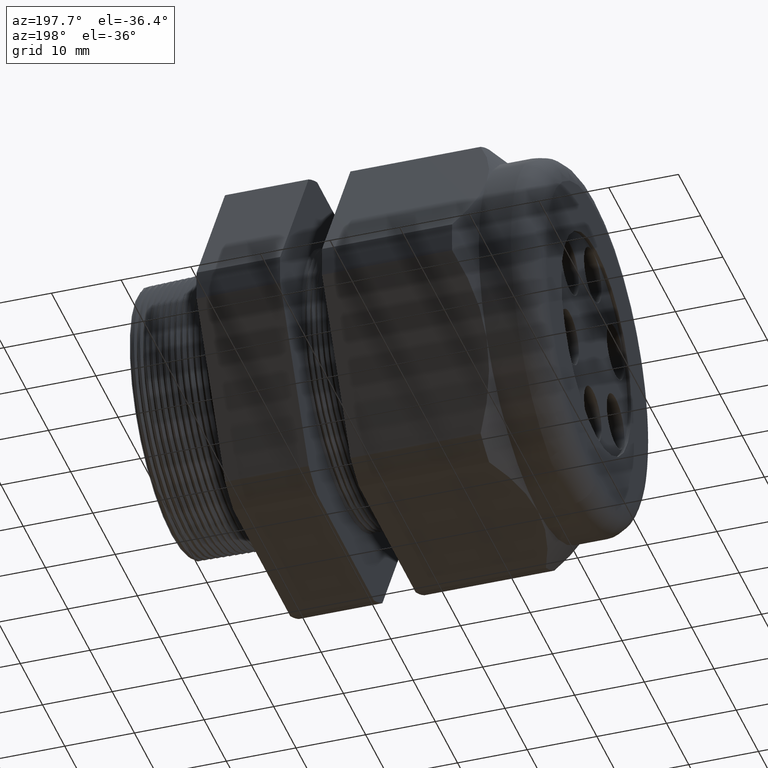
[diagram: clean part render]
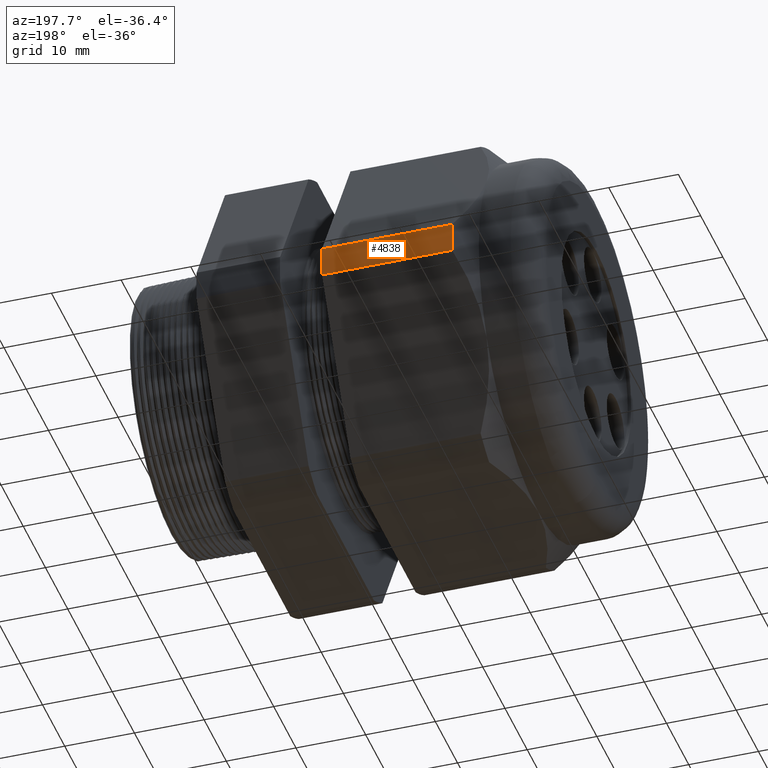
[diagram: same view with one face highlighted and labeled with its STEP entity id]
A machine part, auxiliary view. The second image highlights one B-rep face of the part: STEP entity #4838.
In plain terms, the highlighted cylindrical surface (partial cylindrical patch) has radius 29.4627 mm, axis along (-1, 0, 0).
Its self-contained STEP definition (entity closure, byte-faithful):
#2047 = DIRECTION ( 'NONE',  ( -1.000000000000000000, 0.0000000000000000000, 0.0000000000000000000 ) ) ;
#2048 = VECTOR ( 'NONE', #2047, 39.37007874015748100 ) ;
#2049 = CARTESIAN_POINT ( 'NONE',  ( 0.2000000000000000400, 1.156720106887057800, -0.08650200473511304700 ) ) ;
#2050 = LINE ( 'NONE', #2049, #2048 ) ;
#2056 = CARTESIAN_POINT ( 'NONE',  ( -1.018802799999999800, 1.156720106887057600, -0.08650200473511307500 ) ) ;
#2068 = CARTESIAN_POINT ( 'NONE',  ( -1.754342000000000300, 1.156720106887058100, -0.08650200473511308900 ) ) ;
#2820 = CYLINDRICAL_SURFACE ( 'NONE', #2878, 1.159950000000000000 ) ;
#2821 = FACE_OUTER_BOUND ( 'NONE', #4836, .T. ) ;
#2827 = DIRECTION ( 'NONE',  ( 0.0000000000000000000, 0.0000000000000000000, -1.000000000000000000 ) ) ;
#2828 = DIRECTION ( 'NONE',  ( 1.000000000000000000, 0.0000000000000000000, 0.0000000000000000000 ) ) ;
#2829 = CARTESIAN_POINT ( 'NONE',  ( -1.754342000000000300, 0.0000000000000000000, 0.0000000000000000000 ) ) ;
#2830 = AXIS2_PLACEMENT_3D ( 'NONE', #2829, #2828, #2827 ) ;
#2831 = CIRCLE ( 'NONE', #2830, 1.159950000000000000 ) ;
#2875 = DIRECTION ( 'NONE',  ( 0.0000000000000000000, 0.0000000000000000000, 1.000000000000000000 ) ) ;
#2876 = DIRECTION ( 'NONE',  ( -1.000000000000000000, 0.0000000000000000000, 0.0000000000000000000 ) ) ;
#2877 = CARTESIAN_POINT ( 'NONE',  ( 0.2000000000000000400, 0.0000000000000000000, 0.0000000000000000000 ) ) ;
#2878 = AXIS2_PLACEMENT_3D ( 'NONE', #2877, #2876, #2875 ) ;
#3133 = DIRECTION ( 'NONE',  ( 0.0000000000000000000, 0.0000000000000000000, -1.000000000000000000 ) ) ;
#3134 = DIRECTION ( 'NONE',  ( 1.000000000000000000, 0.0000000000000000000, 0.0000000000000000000 ) ) ;
#3135 = CARTESIAN_POINT ( 'NONE',  ( -1.018802799999999800, 0.0000000000000000000, 0.0000000000000000000 ) ) ;
#3136 = AXIS2_PLACEMENT_3D ( 'NONE', #3135, #3134, #3133 ) ;
#3137 = CIRCLE ( 'NONE', #3136, 1.159950000000000000 ) ;
#3362 = CARTESIAN_POINT ( 'NONE',  ( -1.754342000000000300, 1.156720106887057600, 0.08650200473511329700 ) ) ;
#3372 = CARTESIAN_POINT ( 'NONE',  ( -1.018802799999999800, 1.156720106887057600, 0.08650200473511329700 ) ) ;
#3412 = DIRECTION ( 'NONE',  ( -1.000000000000000000, 0.0000000000000000000, 0.0000000000000000000 ) ) ;
#3413 = VECTOR ( 'NONE', #3412, 39.37007874015748100 ) ;
#3414 = CARTESIAN_POINT ( 'NONE',  ( 0.2000000000000000400, 1.156720106887057600, 0.08650200473511329700 ) ) ;
#3415 = LINE ( 'NONE', #3414, #3413 ) ;
#4409 = VERTEX_POINT ( 'NONE', #2068 ) ;
#4412 = VERTEX_POINT ( 'NONE', #2056 ) ;
#4419 = EDGE_CURVE ( 'NONE', #4412, #4409, #2050, .T. ) ;
#4831 = ORIENTED_EDGE ( 'NONE', *, *, #4419, .T. ) ;
#4832 = ORIENTED_EDGE ( 'NONE', *, *, #4986, .F. ) ;
#4833 = EDGE_CURVE ( 'NONE', #4409, #5165, #2831, .T. ) ;
#4834 = ORIENTED_EDGE ( 'NONE', *, *, #5169, .F. ) ;
#4835 = ORIENTED_EDGE ( 'NONE', *, *, #4833, .T. ) ;
#4836 = EDGE_LOOP ( 'NONE', ( #4831, #4835, #4834, #4832 ) ) ;
#4838 = ADVANCED_FACE ( 'NONE', ( #2821 ), #2820, .T. ) ;
#4986 = EDGE_CURVE ( 'NONE', #4412, #5166, #3137, .T. ) ;
#5165 = VERTEX_POINT ( 'NONE', #3362 ) ;
#5166 = VERTEX_POINT ( 'NONE', #3372 ) ;
#5169 = EDGE_CURVE ( 'NONE', #5166, #5165, #3415, .T. ) ;